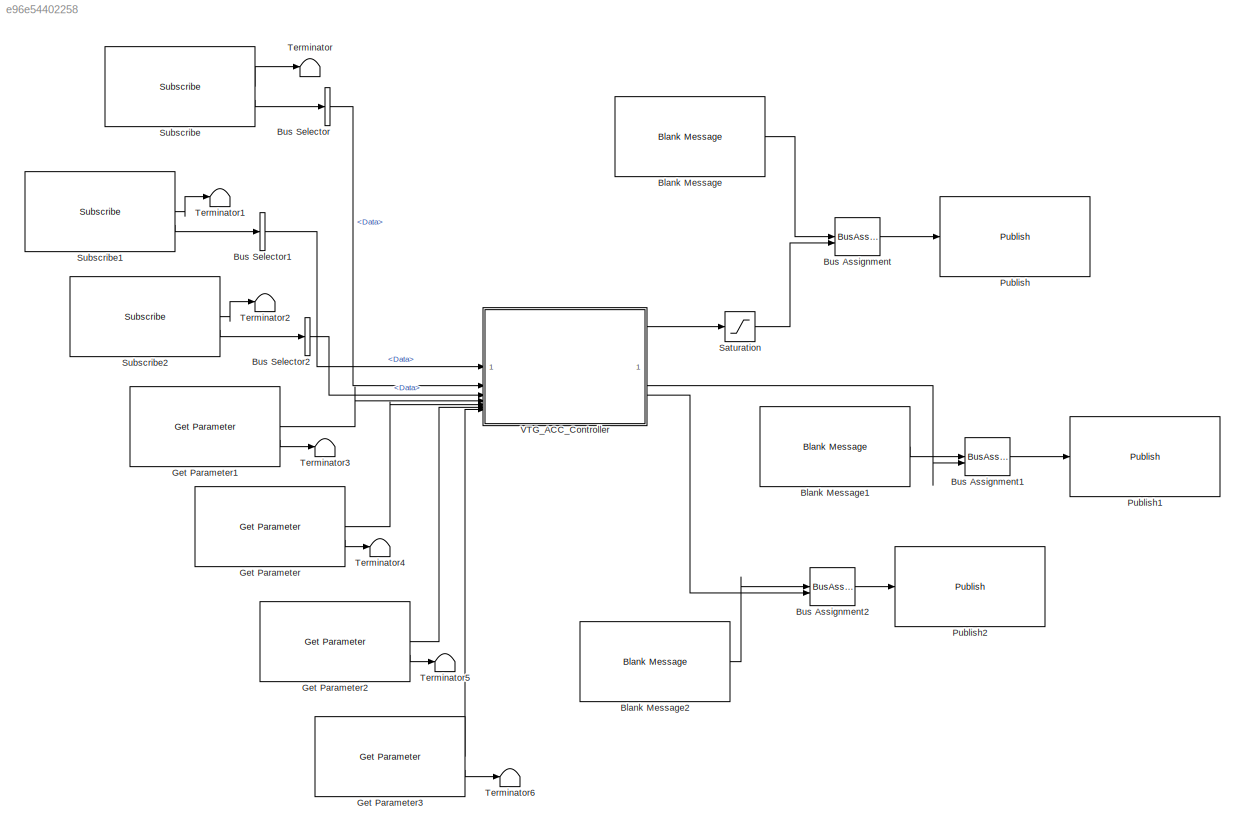
MODEL slx_e96e54402258
KIND model
CONFIG AbsTol = auto
CONFIG EnableMultiTasking = off
CONFIG FixedStep = 0.05
CONFIG MaxStep = auto
CONFIG MinStep = auto
CONFIG RelTol = 1e-3
CONFIG SampleTimeConstraint = Unconstrained
CONFIG SolverName = FixedStepAuto
CONFIG StartTime = 0.0
CONFIG StopTime = inf
BLOCK [Reference] Blank Message  REF=robotlib/Blank Message
  SourceBlock = robotlib/Blank Message
  SourceType = ROS Blank Message
BLOCK [Reference] Blank Message1  REF=robotlib/Blank Message
  SourceBlock = robotlib/Blank Message
  SourceType = ROS Blank Message
BLOCK [Reference] Blank Message2  REF=robotlib/Blank Message
  SourceBlock = robotlib/Blank Message
  SourceType = ROS Blank Message
BLOCK [BusAssignment] Bus Assignment
  AssignedSignals = Data
BLOCK [BusAssignment] Bus Assignment1
  AssignedSignals = Data
BLOCK [BusAssignment] Bus Assignment2
  AssignedSignals = Data
BLOCK [BusSelector] Bus Selector
  OutputSignals = Data
BLOCK [BusSelector] Bus Selector1
  OutputSignals = Data
BLOCK [BusSelector] Bus Selector2
  OutputSignals = Data
BLOCK [Reference] Get Parameter  REF=robotlib/Get Parameter
  SourceBlock = robotlib/Get Parameter
  SourceType = ROS Get Parameter
BLOCK [Reference] Get Parameter1  REF=robotlib/Get Parameter
  SourceBlock = robotlib/Get Parameter
  SourceType = ROS Get Parameter
BLOCK [Reference] Get Parameter2  REF=robotlib/Get Parameter
  SourceBlock = robotlib/Get Parameter
  SourceType = ROS Get Parameter
BLOCK [Reference] Get Parameter3  REF=robotlib/Get Parameter
  SourceBlock = robotlib/Get Parameter
  SourceType = ROS Get Parameter
BLOCK [Reference] Publish  REF=robotlib/Publish
  SourceBlock = robotlib/Publish
  SourceType = ROS Publish
BLOCK [Reference] Publish1  REF=robotlib/Publish
  SourceBlock = robotlib/Publish
  SourceType = ROS Publish
BLOCK [Reference] Publish2  REF=robotlib/Publish
  SourceBlock = robotlib/Publish
  SourceType = ROS Publish
BLOCK [Saturate] Saturation
  LowerLimit = -3.0
  UpperLimit = 1.5
BLOCK [Reference] Subscribe  REF=robotlib/Subscribe
  SourceBlock = robotlib/Subscribe
  SourceType = ROS Subscribe
BLOCK [Reference] Subscribe1  REF=robotlib/Subscribe
  SourceBlock = robotlib/Subscribe
  SourceType = ROS Subscribe
BLOCK [Reference] Subscribe2  REF=robotlib/Subscribe
  SourceBlock = robotlib/Subscribe
  SourceType = ROS Subscribe
BLOCK [Terminator] Terminator
BLOCK [Terminator] Terminator1
BLOCK [Terminator] Terminator2
BLOCK [Terminator] Terminator3
BLOCK [Terminator] Terminator4
BLOCK [Terminator] Terminator5
BLOCK [Terminator] Terminator6
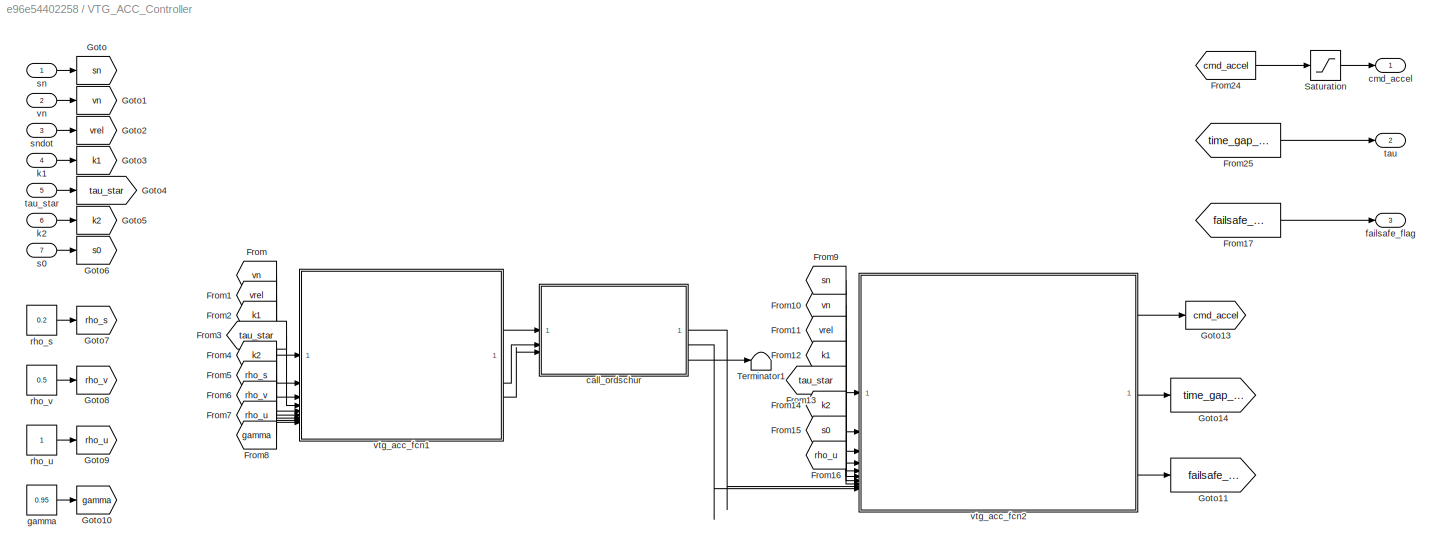
BLOCK [SubSystem] VTG_ACC_Controller
BLOCK [From] VTG_ACC_Controller/From
  GotoTag = vn
BLOCK [From] VTG_ACC_Controller/From1
  GotoTag = vrel
BLOCK [From] VTG_ACC_Controller/From10
  GotoTag = vn
BLOCK [From] VTG_ACC_Controller/From11
  GotoTag = vrel
BLOCK [From] VTG_ACC_Controller/From12
  GotoTag = k1
BLOCK [From] VTG_ACC_Controller/From13
  GotoTag = tau_star
BLOCK [From] VTG_ACC_Controller/From14
  GotoTag = k2
BLOCK [From] VTG_ACC_Controller/From15
  GotoTag = s0
BLOCK [From] VTG_ACC_Controller/From16
  GotoTag = rho_u
BLOCK [From] VTG_ACC_Controller/From17
  GotoTag = failsafe_flag
BLOCK [From] VTG_ACC_Controller/From2
  GotoTag = k1
BLOCK [From] VTG_ACC_Controller/From24
  GotoTag = cmd_accel
BLOCK [From] VTG_ACC_Controller/From25
  GotoTag = time_gap_comm
BLOCK [From] VTG_ACC_Controller/From3
  GotoTag = tau_star
BLOCK [From] VTG_ACC_Controller/From4
  GotoTag = k2
BLOCK [From] VTG_ACC_Controller/From5
  GotoTag = rho_s
BLOCK [From] VTG_ACC_Controller/From6
  GotoTag = rho_v
BLOCK [From] VTG_ACC_Controller/From7
  GotoTag = rho_u
BLOCK [From] VTG_ACC_Controller/From8
  GotoTag = gamma
BLOCK [From] VTG_ACC_Controller/From9
  GotoTag = sn
BLOCK [Goto] VTG_ACC_Controller/Goto
  GotoTag = sn
BLOCK [Goto] VTG_ACC_Controller/Goto1
  GotoTag = vn
BLOCK [Goto] VTG_ACC_Controller/Goto10
  GotoTag = gamma
BLOCK [Goto] VTG_ACC_Controller/Goto11
  GotoTag = failsafe_flag
BLOCK [Goto] VTG_ACC_Controller/Goto13
  GotoTag = cmd_accel
BLOCK [Goto] VTG_ACC_Controller/Goto14
  GotoTag = time_gap_comm
BLOCK [Goto] VTG_ACC_Controller/Goto2
  GotoTag = vrel
BLOCK [Goto] VTG_ACC_Controller/Goto3
  GotoTag = k1
BLOCK [Goto] VTG_ACC_Controller/Goto4
  GotoTag = tau_star
BLOCK [Goto] VTG_ACC_Controller/Goto5
  GotoTag = k2
BLOCK [Goto] VTG_ACC_Controller/Goto6
  GotoTag = s0
BLOCK [Goto] VTG_ACC_Controller/Goto7
  GotoTag = rho_s
BLOCK [Goto] VTG_ACC_Controller/Goto8
  GotoTag = rho_v
BLOCK [Goto] VTG_ACC_Controller/Goto9
  GotoTag = rho_u
BLOCK [Saturate] VTG_ACC_Controller/Saturation
  LowerLimit = -3
  UpperLimit = 1.5
BLOCK [Terminator] VTG_ACC_Controller/Terminator1
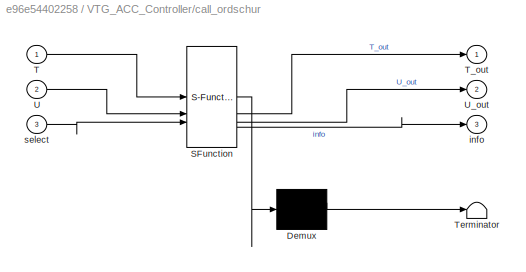
BLOCK [SubSystem] VTG_ACC_Controller/call_ordschur
  ErrorFcn = Stateflow.Translate.translate
  PermitHierarchicalResolution = ExplicitOnly
  SFBlockType = MATLAB Function
  TreatAsAtomicUnit = on
BLOCK [Demux] VTG_ACC_Controller/call_ordschur/ Demux 
  Outputs = 1
BLOCK [S-Function] VTG_ACC_Controller/call_ordschur/ SFunction 
  EnableBusSupport = on
  FunctionName = sf_sfun
  PortCounts = [3 4]
  SFcnIsStateOwnerBlock = off
  SFunctionDeploymentMode = off
  Tag = Stateflow S-Function 6
BLOCK [Terminator] VTG_ACC_Controller/call_ordschur/ Terminator 
BLOCK [Inport] VTG_ACC_Controller/call_ordschur/T
BLOCK [Outport] VTG_ACC_Controller/call_ordschur/T_out
BLOCK [Inport] VTG_ACC_Controller/call_ordschur/U
  Port = 2
BLOCK [Outport] VTG_ACC_Controller/call_ordschur/U_out
  Port = 2
BLOCK [Outport] VTG_ACC_Controller/call_ordschur/info
  Port = 3
BLOCK [Inport] VTG_ACC_Controller/call_ordschur/select
  Port = 3
BLOCK [Outport] VTG_ACC_Controller/cmd_accel
BLOCK [Outport] VTG_ACC_Controller/failsafe_flag
  Port = 3
BLOCK [Constant] VTG_ACC_Controller/gamma
  Value = 0.95
BLOCK [Inport] VTG_ACC_Controller/k1
  Port = 4
BLOCK [Inport] VTG_ACC_Controller/k2
  Port = 6
BLOCK [Constant] VTG_ACC_Controller/rho_s
  Value = 0.2
BLOCK [Constant] VTG_ACC_Controller/rho_u
BLOCK [Constant] VTG_ACC_Controller/rho_v
  Value = 0.5
BLOCK [Inport] VTG_ACC_Controller/s0
  Port = 7
BLOCK [Inport] VTG_ACC_Controller/sn
BLOCK [Inport] VTG_ACC_Controller/sndot
  Port = 3
BLOCK [Outport] VTG_ACC_Controller/tau
  Port = 2
BLOCK [Inport] VTG_ACC_Controller/tau_star
  Port = 5
BLOCK [Inport] VTG_ACC_Controller/vn
  Port = 2
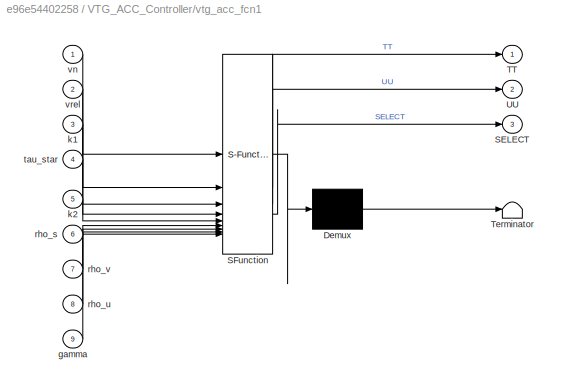
BLOCK [SubSystem] VTG_ACC_Controller/vtg_acc_fcn1
  ErrorFcn = Stateflow.Translate.translate
  LibrarySourceBlock = simulink/User-Defined\nFunctions/MATLAB Function
  PermitHierarchicalResolution = ExplicitOnly
  SFBlockType = MATLAB Function
  TreatAsAtomicUnit = on
BLOCK [Demux] VTG_ACC_Controller/vtg_acc_fcn1/ Demux 
  Outputs = 1
BLOCK [S-Function] VTG_ACC_Controller/vtg_acc_fcn1/ SFunction 
  EnableBusSupport = on
  FunctionName = sf_sfun
  PortCounts = [9 4]
  SFcnIsStateOwnerBlock = off
  SFunctionDeploymentMode = off
  Tag = Stateflow S-Function 4
BLOCK [Terminator] VTG_ACC_Controller/vtg_acc_fcn1/ Terminator 
BLOCK [Outport] VTG_ACC_Controller/vtg_acc_fcn1/SELECT
  Port = 3
BLOCK [Outport] VTG_ACC_Controller/vtg_acc_fcn1/TT
BLOCK [Outport] VTG_ACC_Controller/vtg_acc_fcn1/UU
  Port = 2
BLOCK [Inport] VTG_ACC_Controller/vtg_acc_fcn1/gamma
  Port = 9
BLOCK [Inport] VTG_ACC_Controller/vtg_acc_fcn1/k1
  Port = 3
BLOCK [Inport] VTG_ACC_Controller/vtg_acc_fcn1/k2
  Port = 5
BLOCK [Inport] VTG_ACC_Controller/vtg_acc_fcn1/rho_s
  Port = 6
BLOCK [Inport] VTG_ACC_Controller/vtg_acc_fcn1/rho_u
  Port = 8
BLOCK [Inport] VTG_ACC_Controller/vtg_acc_fcn1/rho_v
  Port = 7
BLOCK [Inport] VTG_ACC_Controller/vtg_acc_fcn1/tau_star
  Port = 4
BLOCK [Inport] VTG_ACC_Controller/vtg_acc_fcn1/vn
BLOCK [Inport] VTG_ACC_Controller/vtg_acc_fcn1/vrel
  Port = 2
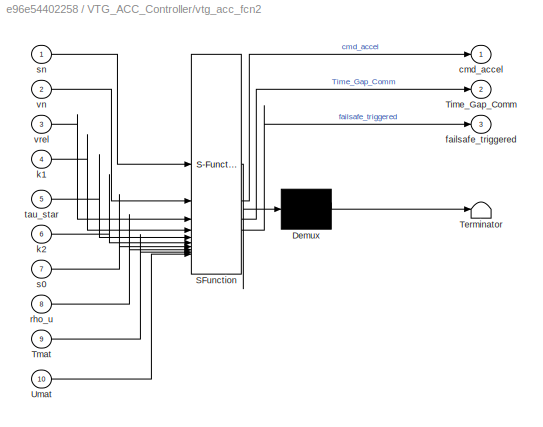
BLOCK [SubSystem] VTG_ACC_Controller/vtg_acc_fcn2
  ErrorFcn = Stateflow.Translate.translate
  LibrarySourceBlock = simulink/User-Defined\nFunctions/MATLAB Function
  PermitHierarchicalResolution = ExplicitOnly
  SFBlockType = MATLAB Function
  TreatAsAtomicUnit = on
BLOCK [Demux] VTG_ACC_Controller/vtg_acc_fcn2/ Demux 
  Outputs = 1
BLOCK [S-Function] VTG_ACC_Controller/vtg_acc_fcn2/ SFunction 
  EnableBusSupport = on
  FunctionName = sf_sfun
  PortCounts = [10 4]
  SFcnIsStateOwnerBlock = off
  SFunctionDeploymentMode = off
  Tag = Stateflow S-Function 7
BLOCK [Terminator] VTG_ACC_Controller/vtg_acc_fcn2/ Terminator 
BLOCK [Outport] VTG_ACC_Controller/vtg_acc_fcn2/Time_Gap_Comm
  Port = 2
BLOCK [Inport] VTG_ACC_Controller/vtg_acc_fcn2/Tmat
  Port = 9
BLOCK [Inport] VTG_ACC_Controller/vtg_acc_fcn2/Umat
  Port = 10
BLOCK [Outport] VTG_ACC_Controller/vtg_acc_fcn2/cmd_accel
BLOCK [Outport] VTG_ACC_Controller/vtg_acc_fcn2/failsafe_triggered
  Port = 3
BLOCK [Inport] VTG_ACC_Controller/vtg_acc_fcn2/k1
  Port = 4
BLOCK [Inport] VTG_ACC_Controller/vtg_acc_fcn2/k2
  Port = 6
BLOCK [Inport] VTG_ACC_Controller/vtg_acc_fcn2/rho_u
  Port = 8
BLOCK [Inport] VTG_ACC_Controller/vtg_acc_fcn2/s0
  Port = 7
BLOCK [Inport] VTG_ACC_Controller/vtg_acc_fcn2/sn
BLOCK [Inport] VTG_ACC_Controller/vtg_acc_fcn2/tau_star
  Port = 5
BLOCK [Inport] VTG_ACC_Controller/vtg_acc_fcn2/vn
  Port = 2
BLOCK [Inport] VTG_ACC_Controller/vtg_acc_fcn2/vrel
  Port = 3
LINE Blank Message1:1 -> Bus Assignment1:1
LINE Blank Message2:1 -> Bus Assignment2:1
LINE Blank Message:1 -> Bus Assignment:1
LINE Bus Assignment1:1 -> Publish1:1
LINE Bus Assignment2:1 -> Publish2:1
LINE Bus Assignment:1 -> Publish:1
LINE Bus Selector1:1 -> VTG_ACC_Controller:1
LINE Bus Selector2:1 -> VTG_ACC_Controller:3
LINE Bus Selector:1 -> VTG_ACC_Controller:2
LINE Get Parameter1:1 -> VTG_ACC_Controller:4
LINE Get Parameter1:2 -> Terminator3:1
LINE Get Parameter2:1 -> VTG_ACC_Controller:6
LINE Get Parameter2:2 -> Terminator5:1
LINE Get Parameter3:1 -> VTG_ACC_Controller:7
LINE Get Parameter3:2 -> Terminator6:1
LINE Get Parameter:1 -> VTG_ACC_Controller:5
LINE Get Parameter:2 -> Terminator4:1
LINE Saturation:1 -> Bus Assignment:2
LINE Subscribe1:1 -> Terminator1:1
LINE Subscribe1:2 -> Bus Selector1:1
LINE Subscribe2:1 -> Terminator2:1
LINE Subscribe2:2 -> Bus Selector2:1
LINE Subscribe:1 -> Terminator:1
LINE Subscribe:2 -> Bus Selector:1
LINE VTG_ACC_Controller/From10:1 -> VTG_ACC_Controller/vtg_acc_fcn2:2
LINE VTG_ACC_Controller/From11:1 -> VTG_ACC_Controller/vtg_acc_fcn2:3
LINE VTG_ACC_Controller/From12:1 -> VTG_ACC_Controller/vtg_acc_fcn2:4
LINE VTG_ACC_Controller/From13:1 -> VTG_ACC_Controller/vtg_acc_fcn2:5
LINE VTG_ACC_Controller/From14:1 -> VTG_ACC_Controller/vtg_acc_fcn2:6
LINE VTG_ACC_Controller/From15:1 -> VTG_ACC_Controller/vtg_acc_fcn2:7
LINE VTG_ACC_Controller/From16:1 -> VTG_ACC_Controller/vtg_acc_fcn2:8
LINE VTG_ACC_Controller/From17:1 -> VTG_ACC_Controller/failsafe_flag:1
LINE VTG_ACC_Controller/From1:1 -> VTG_ACC_Controller/vtg_acc_fcn1:2
LINE VTG_ACC_Controller/From24:1 -> VTG_ACC_Controller/Saturation:1
LINE VTG_ACC_Controller/From25:1 -> VTG_ACC_Controller/tau:1
LINE VTG_ACC_Controller/From2:1 -> VTG_ACC_Controller/vtg_acc_fcn1:3
LINE VTG_ACC_Controller/From3:1 -> VTG_ACC_Controller/vtg_acc_fcn1:4
LINE VTG_ACC_Controller/From4:1 -> VTG_ACC_Controller/vtg_acc_fcn1:5
LINE VTG_ACC_Controller/From5:1 -> VTG_ACC_Controller/vtg_acc_fcn1:6
LINE VTG_ACC_Controller/From6:1 -> VTG_ACC_Controller/vtg_acc_fcn1:7
LINE VTG_ACC_Controller/From7:1 -> VTG_ACC_Controller/vtg_acc_fcn1:8
LINE VTG_ACC_Controller/From8:1 -> VTG_ACC_Controller/vtg_acc_fcn1:9
LINE VTG_ACC_Controller/From9:1 -> VTG_ACC_Controller/vtg_acc_fcn2:1
LINE VTG_ACC_Controller/From:1 -> VTG_ACC_Controller/vtg_acc_fcn1:1
LINE VTG_ACC_Controller/Saturation:1 -> VTG_ACC_Controller/cmd_accel:1
LINE VTG_ACC_Controller/call_ordschur:1 -> VTG_ACC_Controller/vtg_acc_fcn2:9
LINE VTG_ACC_Controller/call_ordschur:2 -> VTG_ACC_Controller/vtg_acc_fcn2:10
LINE VTG_ACC_Controller/call_ordschur:3 -> VTG_ACC_Controller/Terminator1:1
LINE VTG_ACC_Controller/gamma:1 -> VTG_ACC_Controller/Goto10:1
LINE VTG_ACC_Controller/k1:1 -> VTG_ACC_Controller/Goto3:1
LINE VTG_ACC_Controller/k2:1 -> VTG_ACC_Controller/Goto5:1
LINE VTG_ACC_Controller/rho_s:1 -> VTG_ACC_Controller/Goto7:1
LINE VTG_ACC_Controller/rho_u:1 -> VTG_ACC_Controller/Goto9:1
LINE VTG_ACC_Controller/rho_v:1 -> VTG_ACC_Controller/Goto8:1
LINE VTG_ACC_Controller/s0:1 -> VTG_ACC_Controller/Goto6:1
LINE VTG_ACC_Controller/sn:1 -> VTG_ACC_Controller/Goto:1
LINE VTG_ACC_Controller/sndot:1 -> VTG_ACC_Controller/Goto2:1
LINE VTG_ACC_Controller/tau_star:1 -> VTG_ACC_Controller/Goto4:1
LINE VTG_ACC_Controller/vn:1 -> VTG_ACC_Controller/Goto1:1
LINE VTG_ACC_Controller/vtg_acc_fcn1:1 -> VTG_ACC_Controller/call_ordschur:1
LINE VTG_ACC_Controller/vtg_acc_fcn1:2 -> VTG_ACC_Controller/call_ordschur:2
LINE VTG_ACC_Controller/vtg_acc_fcn1:3 -> VTG_ACC_Controller/call_ordschur:3
LINE VTG_ACC_Controller/vtg_acc_fcn2:1 -> VTG_ACC_Controller/Goto13:1
LINE VTG_ACC_Controller/vtg_acc_fcn2:2 -> VTG_ACC_Controller/Goto14:1
LINE VTG_ACC_Controller/vtg_acc_fcn2:3 -> VTG_ACC_Controller/Goto11:1
LINE VTG_ACC_Controller:1 -> Saturation:1
LINE VTG_ACC_Controller:2 -> Bus Assignment1:2
LINE VTG_ACC_Controller:3 -> Bus Assignment2:2
CHART VTG_ACC_Controller/vtg_acc_fcn1 states=1 transitions=1
  STATE_LABEL 'eML_blk_kernel()'
  STATE_LABEL "SCRIPT:\nfunction [TT, UU, SELECT] = vtg_acc_fcn1(vn, vrel, k1, tau_star, k2, rho_s, rho_v, rho_u, gamma)\nAsys = [0 -1; k1 (-k1*tau_star-k2)];\nBdist = [1; k2];\nCsys = [rho_s 0; 0 rho_v; 0 0];\nRu = rho_u^2;\nRmat = [-1/gamma^2 0; 0 inv(Ru)];\n\nve = vrel + vn;\nBctrl = [0; -k1*ve];\n\nBsys = [Bdist, Bctrl];\nQmat = Csys'*Csys;\n\n% --- Replacement for icare(A, B, Q, R) -----------------------------------\nZ =...<+199ch>"
CHART VTG_ACC_Controller/call_ordschur states=1 transitions=1
  STATE_LABEL 'eML_blk_kernel()'
  STATE_LABEL 'SCRIPT:\nfunction [T_out, U_out, info] = call_ordschur(T, U, select)\n%#codegen\ncoder.cinclude(\'ordschur_wrapper.h\');\n\nn = size(T,1);\n\nT_out = T;\nU_out = U;\n\ninfo = int32(0);\n\ninfo = coder.ceval(\'ordschur_reorder\', ...\n    int32(n), ...\n    coder.ref(T_out), ...\n    coder.ref(U_out), ...\n    coder.rref(select) );\n\n% For Simulink\ncustomDir = "<userpath><path><+174ch>'
CHART VTG_ACC_Controller/vtg_acc_fcn2 states=1 transitions=1
  STATE_LABEL 'eML_blk_kernel()'
  STATE_LABEL 'SCRIPT:\nfunction [cmd_accel, Time_Gap_Comm, failsafe_triggered] = vtg_acc_fcn2(sn, vn, vrel, k1, tau_star, k2, s0, rho_u, Tmat, Umat)\ncmd_accel = 0; Time_Gap_Comm= 0; failsafe_triggered = false;\nRu = rho_u^2;\n\nve = vrel + vn;\ns_err = sn - (s0+tau_star*ve);\nv_err = vn - ve;\n\n% --- Replacement for icare(A, B, Q, R) -----------------------------------\nP = zeros(2, 2);\n[m,n] = size(Umat);\nU11 = Umat(1...<+536ch>'
CHART  states=0 transitions=0
CHART  states=0 transitions=0
CHART  states=0 transitions=0
note: 1 file-system path scrubbed to <path> (not preserved elsewhere — flat text is the only slx artifact)
